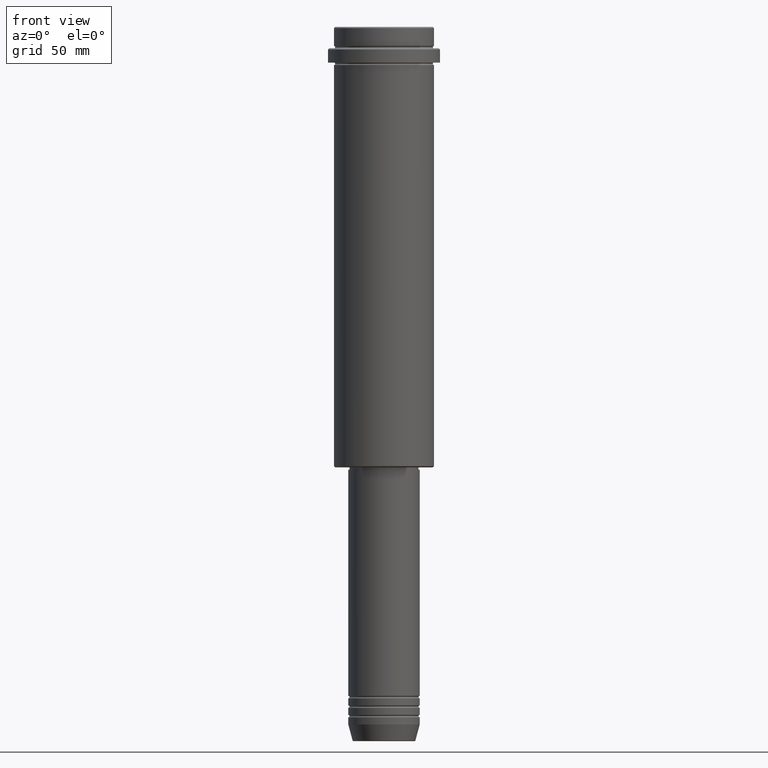
[diagram: clean part render]
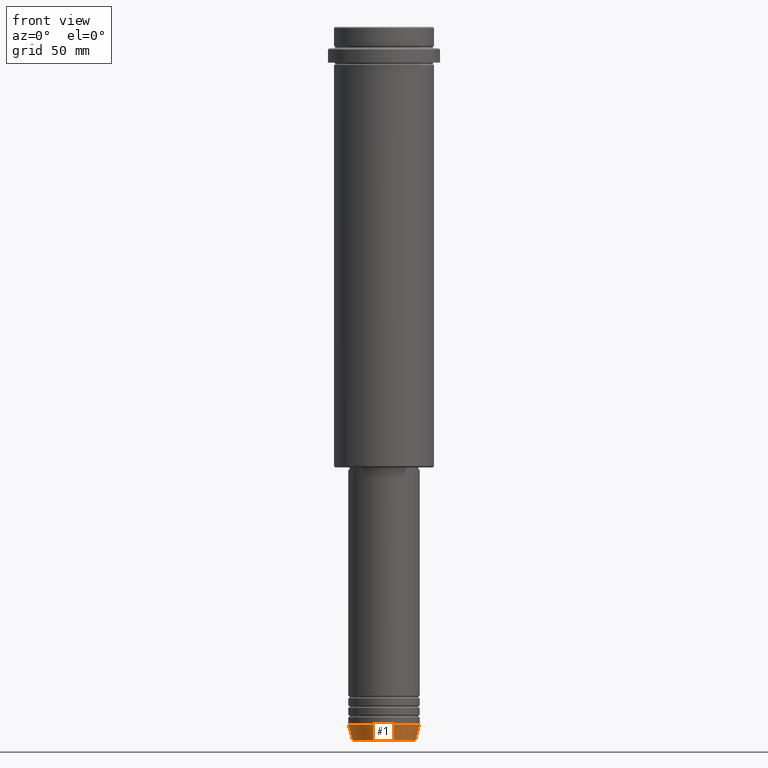
[diagram: same view with one face highlighted and labeled with its STEP entity id]
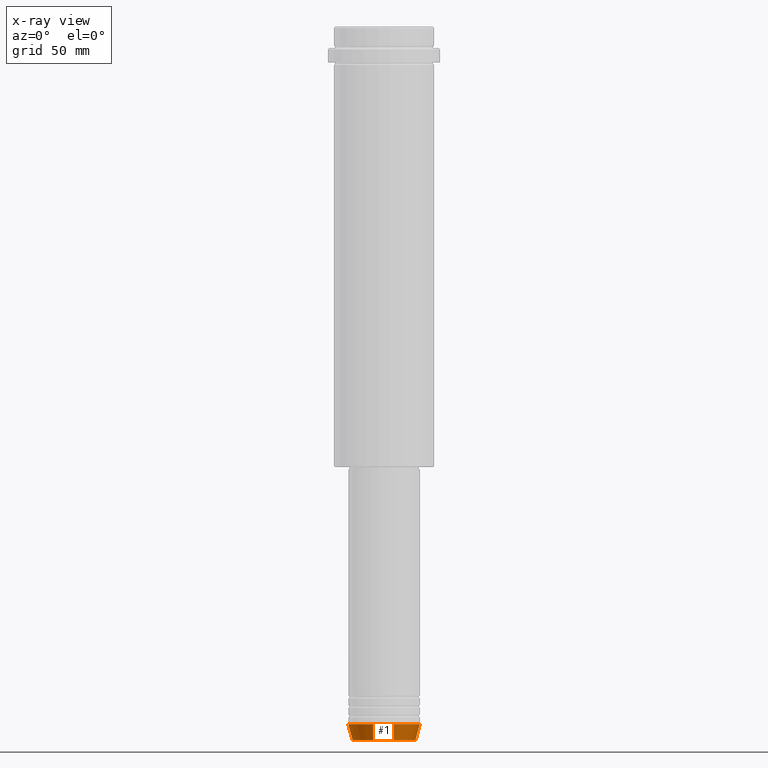
[diagram: x-ray of the same camera — body ghosted, the highlighted face saturated]
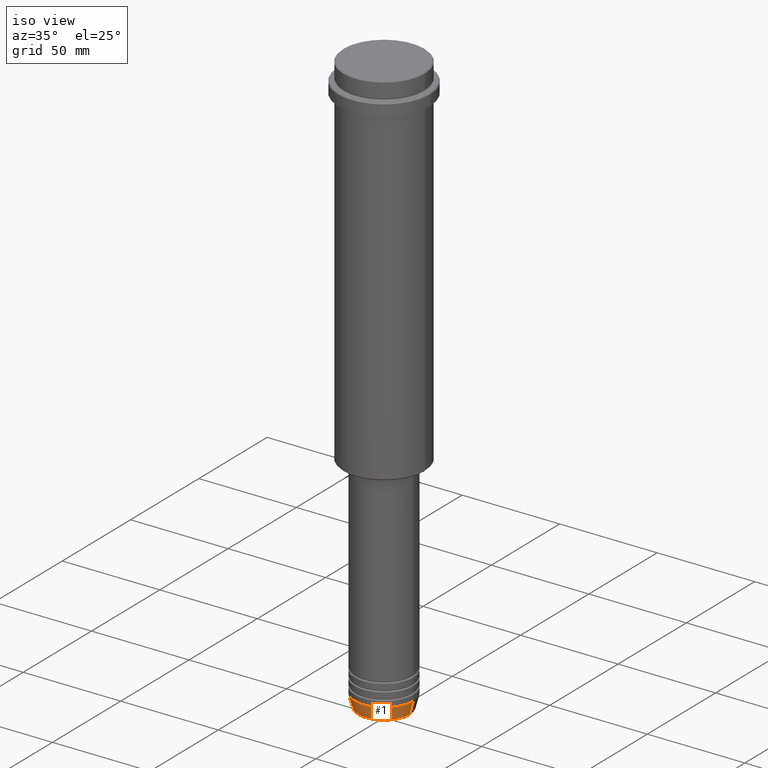
[diagram: same view with one face highlighted and labeled with its STEP entity id]
A machine part, front view. The second image highlights one B-rep face of the part: STEP entity #1.
The next image is the same camera in x-ray: the body ghosted, the highlighted face saturated — about 0% of this face is hidden behind the body in this view.
A second angle (iso view) of the same face is appended — the face is thin or edge-on in the first view.
In plain terms, the highlighted conical surface has half-angle 15 deg.
Its self-contained STEP definition (entity closure, byte-faithful):
#1 = ADVANCED_FACE ( 'NONE', ( #1174 ), #939, .T. ) ;
#76 = LINE ( 'NONE', #405, #1288 ) ;
#78 = AXIS2_PLACEMENT_3D ( 'NONE', #520, #199, #93 ) ;
#93 = DIRECTION ( 'NONE',  ( 1.000000000000000000, 0.000000000000000000, 0.000000000000000000 ) ) ;
#103 = CARTESIAN_POINT ( 'NONE',  ( -15.00000000000000000, 1.836970198721029589E-15, -293.0000000000000000 ) ) ;
#123 = VECTOR ( 'NONE', #1286, 1000.000000000000000 ) ;
#150 = ORIENTED_EDGE ( 'NONE', *, *, #872, .T. ) ;
#199 = DIRECTION ( 'NONE',  ( -0.000000000000000000, -0.000000000000000000, 1.000000000000000000 ) ) ;
#358 = CARTESIAN_POINT ( 'NONE',  ( 13.22365507213718772, 0.000000000000000000, -299.6294095225512706 ) ) ;
#382 = CARTESIAN_POINT ( 'NONE',  ( -13.22365507213718772, 1.728200442216588386E-15, -299.6294095225512706 ) ) ;
#405 = CARTESIAN_POINT ( 'NONE',  ( -15.00000000000000000, 1.836970198721029589E-15, -293.0000000000000000 ) ) ;
#407 = VERTEX_POINT ( 'NONE', #836 ) ;
#409 = CARTESIAN_POINT ( 'NONE',  ( 0.000000000000000000, 0.000000000000000000, -299.6294095225512706 ) ) ;
#438 = CIRCLE ( 'NONE', #1237, 15.00000000000000000 ) ;
#448 = EDGE_CURVE ( 'NONE', #654, #884, #76, .T. ) ;
#485 = DIRECTION ( 'NONE',  ( 1.000000000000000000, 0.000000000000000000, 0.000000000000000000 ) ) ;
#520 = CARTESIAN_POINT ( 'NONE',  ( 0.000000000000000000, 0.000000000000000000, -293.0000000000000000 ) ) ;
#558 = VERTEX_POINT ( 'NONE', #358 ) ;
#600 = CARTESIAN_POINT ( 'NONE',  ( 0.000000000000000000, 0.000000000000000000, -293.0000000000000000 ) ) ;
#601 = ORIENTED_EDGE ( 'NONE', *, *, #448, .F. ) ;
#645 = AXIS2_PLACEMENT_3D ( 'NONE', #409, #843, #955 ) ;
#654 = VERTEX_POINT ( 'NONE', #382 ) ;
#836 = CARTESIAN_POINT ( 'NONE',  ( 15.00000000000000000, 0.000000000000000000, -293.0000000000000000 ) ) ;
#841 = DIRECTION ( 'NONE',  ( -0.2588190451025213501, 3.169619151431772337E-17, 0.9659258262890680902 ) ) ;
#843 = DIRECTION ( 'NONE',  ( -0.000000000000000000, -0.000000000000000000, 1.000000000000000000 ) ) ;
#845 = LINE ( 'NONE', #1300, #123 ) ;
#872 = EDGE_CURVE ( 'NONE', #558, #407, #845, .T. ) ;
#884 = VERTEX_POINT ( 'NONE', #103 ) ;
#939 = CONICAL_SURFACE ( 'NONE', #78, 15.00000000000000000, 0.2617993877991500740 ) ;
#955 = DIRECTION ( 'NONE',  ( 1.000000000000000000, 0.000000000000000000, 0.000000000000000000 ) ) ;
#960 = ORIENTED_EDGE ( 'NONE', *, *, #1273, .T. ) ;
#1057 = CIRCLE ( 'NONE', #645, 13.22365507213718772 ) ;
#1070 = EDGE_LOOP ( 'NONE', ( #601, #960, #150, #1363 ) ) ;
#1143 = EDGE_CURVE ( 'NONE', #884, #407, #438, .T. ) ;
#1174 = FACE_OUTER_BOUND ( 'NONE', #1070, .T. ) ;
#1221 = DIRECTION ( 'NONE',  ( -0.000000000000000000, -0.000000000000000000, 1.000000000000000000 ) ) ;
#1237 = AXIS2_PLACEMENT_3D ( 'NONE', #600, #1221, #485 ) ;
#1273 = EDGE_CURVE ( 'NONE', #654, #558, #1057, .T. ) ;
#1286 = DIRECTION ( 'NONE',  ( 0.2588190451025213501, 0.000000000000000000, 0.9659258262890680902 ) ) ;
#1288 = VECTOR ( 'NONE', #841, 1000.000000000000000 ) ;
#1300 = CARTESIAN_POINT ( 'NONE',  ( 15.00000000000000000, 0.000000000000000000, -293.0000000000000000 ) ) ;
#1363 = ORIENTED_EDGE ( 'NONE', *, *, #1143, .F. ) ;